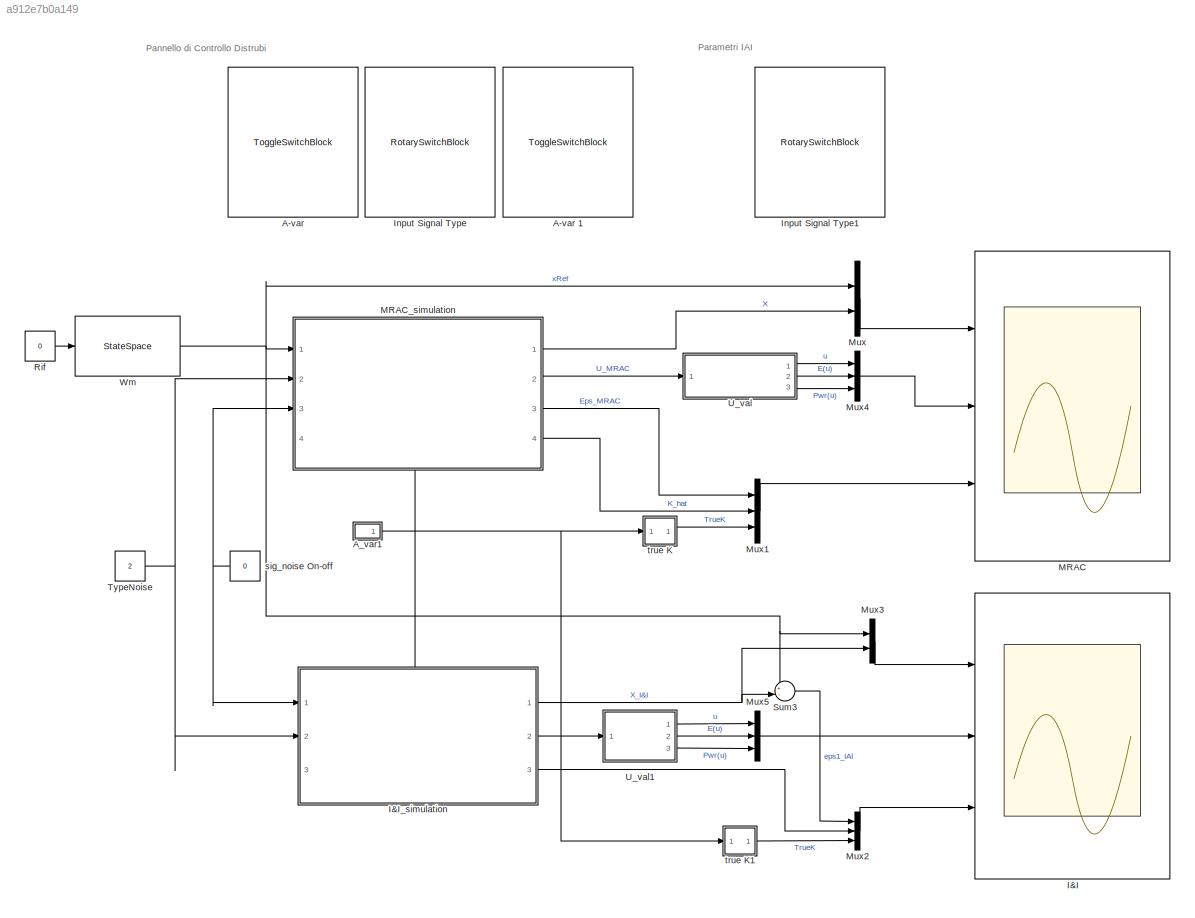
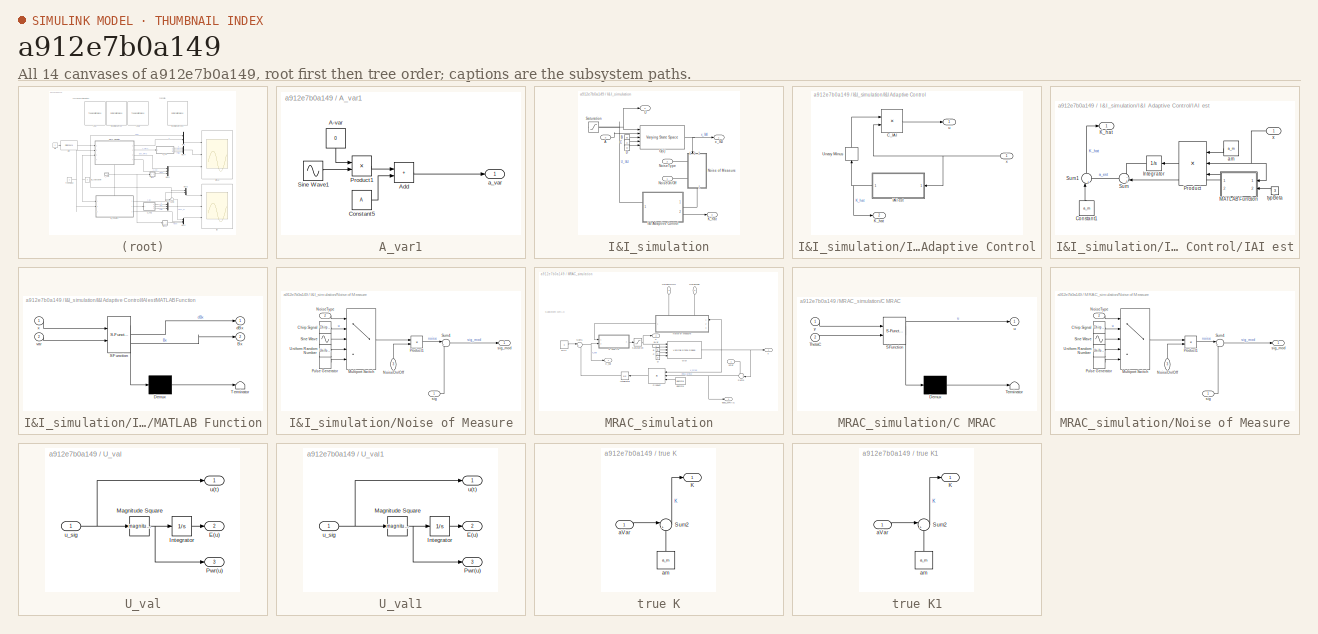
[diagram: thumbnail index - all 14 canvases of the model, root first then tree order]
MODEL slx_a912e7b0a149
KIND model
CONFIG AbsTol = auto
CONFIG EnableMultiTasking = off
CONFIG FixedStep = 0.01
CONFIG InitFcn = variableLoad
CONFIG MaxStep = auto
CONFIG MinStep = auto
CONFIG RelTol = 1e-7
CONFIG SampleTimeConstraint = Unconstrained
CONFIG Solver = VariableStepAuto
CONFIG SolverName = VariableStepAuto
CONFIG StartTime = 0.0
CONFIG StopTime = 10
BLOCK [ToggleSwitchBlock] A-var 
  LabelPosition = Hide
BLOCK [ToggleSwitchBlock] A-var 1
  LabelPosition = Hide
BLOCK [SubSystem] A_var1
  NameLocation = left
  Ports = [0, 1]
  RequestExecContextInheritance = off
BLOCK [Constant] A_var1/A-var
  NameLocation = left
  Value = 0
BLOCK [Sum] A_var1/Add
  IconShape = rectangular
  Ports = [2, 1]
BLOCK [Constant] A_var1/Constant5
  Value = A
BLOCK [Product] A_var1/Product1
  Ports = [2, 1]
BLOCK [Sin] A_var1/Sine Wave1
  Amplitude = a_ampl
  Frequency = a_varFreq
  Ports = [0, 1]
  SampleTime = 0
BLOCK [Outport] A_var1/a_var
BLOCK [Scope] I&I
  Floating = off
  NumInputPorts = 3
  Ports = [3]
  ScopeSpecificationString = Simulink.scopes.TimeScopeBlockCfg('CurrentConfiguration', extmgr.ConfigurationSet(extmgr.Configuration('Core','General UI',true),extmgr.Configuration('Core','Source UI',true),extmgr.Configuration('Sources','WiredSimulink',true,'DataLoggingVariableName','ScopeData1'),extmgr.Configuration('Visuals','Time Domain',true,'SerializedDisplays',{struct('MinYLimReal','-1.875','MaxYLimReal','16.875','YLabelR...<+2842ch>
BLOCK [SubSystem] I&I_simulation
  PortSchema = {"entries":[{"content":{"sides":[{"content":{"connectorIds":["In1","In2"]},"type":"ConnectorPlacement.EquallySpacedRectSide","uuid":"d384756c-e0fa-418b-b326-9d1059b6aafa"},{"content":{"connectorIds":["Out1","Out2","Out3"],"side":"RIGHT"},"type":"ConnectorPlacement.EquallySpacedRectSide","uuid":"b98808e4-51f1-49a7-8e8c-394bc903109b"},{"content":{"connectorIds":["In3"],"side":"TOP"},"type":"Connecto...<+267ch>
  Ports = [3, 3]
  RequestExecContextInheritance = off
BLOCK [Inport] I&I_simulation/A
  Port = 3
BLOCK [Constant] I&I_simulation/B
  NameLocation = left
  Value = B
BLOCK [Constant] I&I_simulation/C
  NameLocation = left
  Value = C
BLOCK [Constant] I&I_simulation/D
  NameLocation = left
  Value = D
BLOCK [Reference] I&I_simulation/G(s)  REF=cstblocks/Linear Parameter Varying/Varying State Space
  Ports = [5, 3]
  SourceBlock = cstblocks/Linear Parameter Varying/Varying State Space
  SourceProductBaseCode = CT
  SourceType = Varying State Space
BLOCK [SubSystem] I&I_simulation/I&I Adaptive Control
  PortSchema = {"entries":[{"content":{"sides":[{"content":{"connectorIds":["Out2","In1"]},"type":"ConnectorPlacement.EquallySpacedRectSide","uuid":"e4fc12a4-4da8-494f-b951-d6a4b2b0fcb6"},{"content":{"connectorIds":["Out1"],"side":"RIGHT"},"type":"ConnectorPlacement.EquallySpacedRectSide","uuid":"49d49c76-986a-4ce3-a132-696710026b43"},{"content":{"connectorIds":[],"side":"TOP"},"type":"ConnectorPlacement.Equally...<+393ch>
  Ports = [1, 2]
  RequestExecContextInheritance = off
BLOCK [Product] I&I_simulation/I&I Adaptive Control/C_IAI
  Ports = [2, 1]
BLOCK [SubSystem] I&I_simulation/I&I Adaptive Control/IAI est
  Ports = [1, 1]
  RequestExecContextInheritance = off
BLOCK [Constant] I&I_simulation/I&I Adaptive Control/IAI est/Constant1
  NameLocation = right
  Value = a_m
BLOCK [Integrator] I&I_simulation/I&I Adaptive Control/IAI est/Integrator
  NameLocation = top
  Ports = [1, 1]
BLOCK [Outport] I&I_simulation/I&I Adaptive Control/IAI est/K_hat
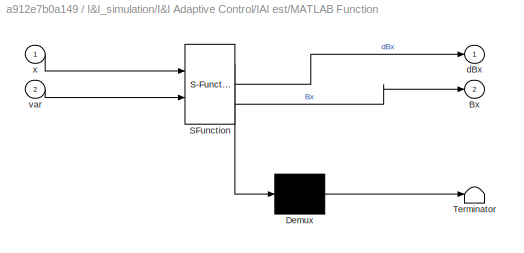
BLOCK [SubSystem] I&I_simulation/I&I Adaptive Control/IAI est/MATLAB Function
  ErrorFcn = Stateflow.Translate.translate
  NameLocation = top
  PermitHierarchicalResolution = ExplicitOnly
  Ports = [2, 2]
  RequestExecContextInheritance = off
  SFBlockType = MATLAB Function
  TreatAsAtomicUnit = on
BLOCK [Demux] I&I_simulation/I&I Adaptive Control/IAI est/MATLAB Function/ Demux 
  Outputs = 1
  Ports = [1, 1]
BLOCK [S-Function] I&I_simulation/I&I Adaptive Control/IAI est/MATLAB Function/ SFunction 
  EnableBusSupport = on
  FunctionName = sf_sfun
  PortCounts = [2 3]
  Ports = [2, 3]
  SFcnIsStateOwnerBlock = off
  SFunctionDeploymentMode = off
  Tag = Stateflow S-Function 1
BLOCK [Terminator] I&I_simulation/I&I Adaptive Control/IAI est/MATLAB Function/ Terminator 
BLOCK [Outport] I&I_simulation/I&I Adaptive Control/IAI est/MATLAB Function/Bx
  Port = 2
BLOCK [Outport] I&I_simulation/I&I Adaptive Control/IAI est/MATLAB Function/dBx
BLOCK [Inport] I&I_simulation/I&I Adaptive Control/IAI est/MATLAB Function/var
  Port = 2
BLOCK [Inport] I&I_simulation/I&I Adaptive Control/IAI est/MATLAB Function/x
BLOCK [Product] I&I_simulation/I&I Adaptive Control/IAI est/Product
  Inputs = 3
  NameLocation = top
  Ports = [3, 1]
BLOCK [Sum] I&I_simulation/I&I Adaptive Control/IAI est/Sum
  Inputs = -|+
  NameLocation = top
  Ports = [2, 1]
BLOCK [Sum] I&I_simulation/I&I Adaptive Control/IAI est/Sum1
  Inputs = |++
  NameLocation = right
  Ports = [2, 1]
BLOCK [Constant] I&I_simulation/I&I Adaptive Control/IAI est/am
  NameLocation = top
  Value = a_m
BLOCK [Constant] I&I_simulation/I&I Adaptive Control/IAI est/typBeta
  NameLocation = top
  Value = 3
BLOCK [Inport] I&I_simulation/I&I Adaptive Control/IAI est/x
  NameLocation = top
BLOCK [Outport] I&I_simulation/I&I Adaptive Control/K_hat
  Port = 2
BLOCK [UnaryMinus] I&I_simulation/I&I Adaptive Control/Unary Minus
  NameLocation = right
BLOCK [Outport] I&I_simulation/I&I Adaptive Control/u
BLOCK [Inport] I&I_simulation/I&I Adaptive Control/x
BLOCK [Outport] I&I_simulation/K_hat
  Port = 3
BLOCK [SubSystem] I&I_simulation/Noise of Measure
  NameLocation = right
  PortSchema = {"entries":[{"content":{"sides":[{"content":{"connectorIds":["In1"]},"type":"ConnectorPlacement.EquallySpacedRectSide","uuid":"4b508b70-0ad5-40d5-a386-2018a01c222c"},{"content":{"connectorIds":["Out1"],"side":"RIGHT"},"type":"ConnectorPlacement.EquallySpacedRectSide","uuid":"c3cac95c-7f5d-4583-ad3e-275e11afc2b6"},{"content":{"connectorIds":["In2","In3"],"side":"TOP"},"type":"ConnectorPlacement.Equ...<+253ch>
  Ports = [3, 1]
  RequestExecContextInheritance = off
BLOCK [Reference] I&I_simulation/Noise of Measure/Chirp Signal  REF=simulink/Sources/Chirp Signal
  Ports = [0, 1]
  SourceBlock = simulink/Sources/Chirp Signal
  SourceProductBaseCode = SL
  SourceType = chirp
BLOCK [MultiPortSwitch] I&I_simulation/Noise of Measure/Multiport Switch
  DataPortIndices = {1,2,3,4}
  DataPortOrder = Specify indices
  InputSameDT = off
  Ports = [5, 1]
  SaturateOnIntegerOverflow = off
BLOCK [Inport] I&I_simulation/Noise of Measure/NoiseOn//Off
  Port = 3
BLOCK [Inport] I&I_simulation/Noise of Measure/NoiseType
  NameLocation = left
  Port = 2
BLOCK [Product] I&I_simulation/Noise of Measure/Product1
  Ports = [2, 1]
BLOCK [DiscretePulseGenerator] I&I_simulation/Noise of Measure/Pulse Generator
  Amplitude = 0.1
  Period = 1
  Ports = [0, 1]
  PulseType = Time based
  PulseWidth = 50
BLOCK [Sin] I&I_simulation/Noise of Measure/Sine Wave
  Amplitude = 0.1
  Frequency = 5
  Ports = [0, 1]
  SampleTime = 0
BLOCK [Sum] I&I_simulation/Noise of Measure/Sum4
  Inputs = |++
  Ports = [2, 1]
BLOCK [UniformRandomNumber] I&I_simulation/Noise of Measure/Uniform Random Number
  Maximum = 0.1
  Minimum = -eMax
  SampleTime = 0.1
BLOCK [Inport] I&I_simulation/Noise of Measure/sig
BLOCK [Outport] I&I_simulation/Noise of Measure/sig_mod
BLOCK [Inport] I&I_simulation/NoiseOn//Off
BLOCK [Inport] I&I_simulation/NoiseType
  Port = 2
BLOCK [Saturate] I&I_simulation/Saturation
  LowerLimit = -x0Wm*sogliaSat
  UpperLimit = x0Wm*sogliaSat
BLOCK [Outport] I&I_simulation/U
  Port = 2
BLOCK [Outport] I&I_simulation/x_I&I
BLOCK [RotarySwitchBlock] Input Signal Type
  LabelPosition = Hide
BLOCK [RotarySwitchBlock] Input Signal Type1
  LabelPosition = Hide
BLOCK [Scope] MRAC
  Floating = off
  NumInputPorts = 3
  Ports = [3]
  ScopeSpecificationString = Simulink.scopes.TimeScopeBlockCfg('CurrentConfiguration', extmgr.ConfigurationSet(extmgr.Configuration('Core','General UI',true),extmgr.Configuration('Core','Source UI',true),extmgr.Configuration('Sources','WiredSimulink',true,'DataLoggingVariableName','ScopeData1'),extmgr.Configuration('Visuals','Time Domain',true,'SerializedDisplays',{struct('MinYLimReal','-1.88721','MaxYLimReal','16.98491','YLa...<+2829ch>
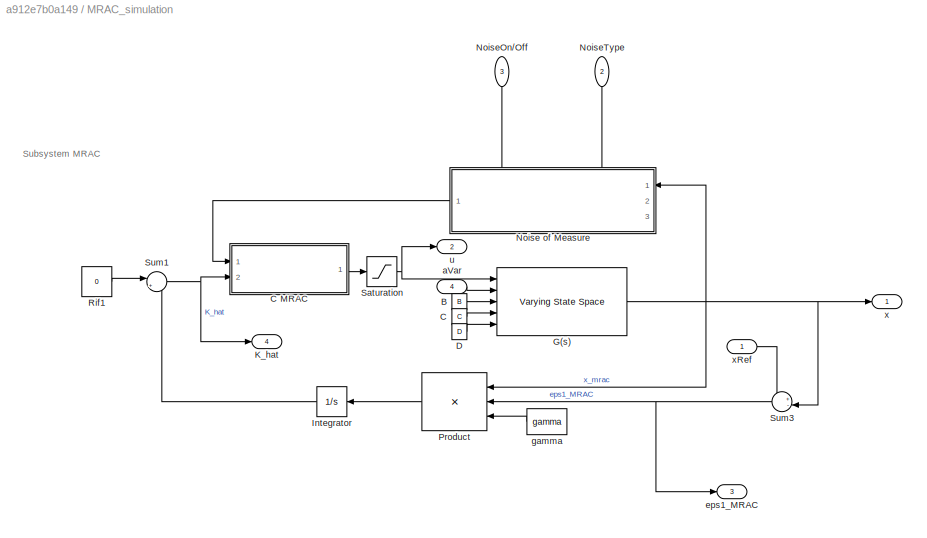
BLOCK [SubSystem] MRAC_simulation
  PortSchema = {"entries":[{"content":{"sides":[{"content":{"connectorIds":["In1","In2","In3"]},"type":"ConnectorPlacement.EquallySpacedRectSide","uuid":"50a8448c-639f-4b89-bd32-4c433e6280bb"},{"content":{"connectorIds":["Out1","Out2","Out3","Out4"],"side":"RIGHT"},"type":"ConnectorPlacement.EquallySpacedRectSide","uuid":"8e99ffe2-f777-454e-a352-f8b1454567c4"},{"content":{"connectorIds":[],"side":"TOP"},"type":"...<+424ch>
  Ports = [4, 4]
  RequestExecContextInheritance = off
BLOCK [Constant] MRAC_simulation/B
  NameLocation = left
  Value = B
BLOCK [Constant] MRAC_simulation/C
  NameLocation = left
  Value = C
BLOCK [SubSystem] MRAC_simulation/C MRAC
  ErrorFcn = Stateflow.Translate.translate
  PermitHierarchicalResolution = ExplicitOnly
  Ports = [2, 1]
  RequestExecContextInheritance = off
  SFBlockType = MATLAB Function
  TreatAsAtomicUnit = on
BLOCK [Demux] MRAC_simulation/C MRAC/ Demux 
  Outputs = 1
  Ports = [1, 1]
BLOCK [S-Function] MRAC_simulation/C MRAC/ SFunction 
  EnableBusSupport = on
  FunctionName = sf_sfun
  PortCounts = [2 2]
  Ports = [2, 2]
  SFcnIsStateOwnerBlock = off
  SFunctionDeploymentMode = off
  Tag = Stateflow S-Function 2
BLOCK [Terminator] MRAC_simulation/C MRAC/ Terminator 
BLOCK [Inport] MRAC_simulation/C MRAC/ThetaC
  Port = 2
BLOCK [Outport] MRAC_simulation/C MRAC/u
BLOCK [Inport] MRAC_simulation/C MRAC/y
BLOCK [Constant] MRAC_simulation/D
  NameLocation = left
  Value = D
BLOCK [Reference] MRAC_simulation/G(s)  REF=cstblocks/Linear Parameter Varying/Varying State Space
  Ports = [5, 3]
  SourceBlock = cstblocks/Linear Parameter Varying/Varying State Space
  SourceProductBaseCode = CT
  SourceType = Varying State Space
BLOCK [Integrator] MRAC_simulation/Integrator
  NameLocation = top
  Ports = [1, 1]
BLOCK [Outport] MRAC_simulation/K_hat
  Port = 4
BLOCK [SubSystem] MRAC_simulation/Noise of Measure
  PortSchema = {"entries":[{"content":{"sides":[{"content":{"connectorIds":["In1"]},"type":"ConnectorPlacement.EquallySpacedRectSide","uuid":"4b508b70-0ad5-40d5-a386-2018a01c222c"},{"content":{"connectorIds":["Out1"],"side":"RIGHT"},"type":"ConnectorPlacement.EquallySpacedRectSide","uuid":"c3cac95c-7f5d-4583-ad3e-275e11afc2b6"},{"content":{"connectorIds":["In2","In3"],"side":"TOP"},"type":"ConnectorPlacement.Equ...<+253ch>
  Ports = [3, 1]
  RequestExecContextInheritance = off
BLOCK [Reference] MRAC_simulation/Noise of Measure/Chirp Signal  REF=simulink/Sources/Chirp Signal
  Ports = [0, 1]
  SourceBlock = simulink/Sources/Chirp Signal
  SourceProductBaseCode = SL
  SourceType = chirp
BLOCK [MultiPortSwitch] MRAC_simulation/Noise of Measure/Multiport Switch
  DataPortIndices = {1,2,3,4}
  DataPortOrder = Specify indices
  InputSameDT = off
  Ports = [5, 1]
  SaturateOnIntegerOverflow = off
BLOCK [Inport] MRAC_simulation/Noise of Measure/NoiseOn//Off
  Port = 3
BLOCK [Inport] MRAC_simulation/Noise of Measure/NoiseType
  NameLocation = left
  Port = 2
BLOCK [Product] MRAC_simulation/Noise of Measure/Product1
  Ports = [2, 1]
BLOCK [DiscretePulseGenerator] MRAC_simulation/Noise of Measure/Pulse Generator
  Amplitude = 0.1
  Period = 1
  Ports = [0, 1]
  PulseType = Time based
  PulseWidth = 50
BLOCK [Sin] MRAC_simulation/Noise of Measure/Sine Wave
  Amplitude = 0.1
  Frequency = 5
  Ports = [0, 1]
  SampleTime = 0
BLOCK [Sum] MRAC_simulation/Noise of Measure/Sum4
  Inputs = |++
  Ports = [2, 1]
BLOCK [UniformRandomNumber] MRAC_simulation/Noise of Measure/Uniform Random Number
  Maximum = 0.1
  Minimum = -eMax
  SampleTime = 0.1
BLOCK [Inport] MRAC_simulation/Noise of Measure/sig
BLOCK [Outport] MRAC_simulation/Noise of Measure/sig_mod
BLOCK [Inport] MRAC_simulation/NoiseOn//Off
  NameLocation = top
  Port = 3
BLOCK [Inport] MRAC_simulation/NoiseType
  NameLocation = top
  Port = 2
BLOCK [Product] MRAC_simulation/Product
  Inputs = 3
  NameLocation = top
  Ports = [3, 1]
BLOCK [Constant] MRAC_simulation/Rif1
  Value = 0
BLOCK [Saturate] MRAC_simulation/Saturation
  LowerLimit = -x0Wm*sogliaSat
  UpperLimit = x0Wm*sogliaSat
BLOCK [Sum] MRAC_simulation/Sum1
  Inputs = |+-
  Ports = [2, 1]
BLOCK [Sum] MRAC_simulation/Sum3
  Inputs = +-|
  NameLocation = top
  Ports = [2, 1]
BLOCK [Inport] MRAC_simulation/aVar
  NameLocation = left
  Port = 4
BLOCK [Outport] MRAC_simulation/eps1_MRAC
  Port = 3
BLOCK [Constant] MRAC_simulation/gamma
  Value = gamma
BLOCK [Outport] MRAC_simulation/u
  Port = 2
BLOCK [Outport] MRAC_simulation/x
BLOCK [Inport] MRAC_simulation/xRef
BLOCK [Mux] Mux
  DisplayOption = bar
  Inputs = 2
  Ports = [2, 1]
BLOCK [Mux] Mux1
  DisplayOption = bar
  Inputs = 3
  Ports = [3, 1]
BLOCK [Mux] Mux2
  DisplayOption = bar
  Inputs = 3
  Ports = [3, 1]
BLOCK [Mux] Mux3
  DisplayOption = bar
  Inputs = 2
  Ports = [2, 1]
BLOCK [Mux] Mux4
  DisplayOption = bar
  Inputs = 3
  Ports = [3, 1]
BLOCK [Mux] Mux5
  DisplayOption = bar
  Inputs = 3
  Ports = [3, 1]
BLOCK [Constant] Rif
  Value = 0
BLOCK [Sum] Sum3
  Inputs = +-|
  Ports = [2, 1]
BLOCK [Constant] TypeNoise
  NameLocation = left
  Value = 2
BLOCK [SubSystem] U_val
  Ports = [1, 3]
  RequestExecContextInheritance = off
BLOCK [Outport] U_val/E(u)
  Port = 2
BLOCK [Integrator] U_val/Integrator
  Ports = [1, 1]
BLOCK [Math] U_val/Magnitude Square
  Operator = magnitude^2
  Ports = [1, 1]
  RndMeth = Zero
  SignedPower = on
BLOCK [Outport] U_val/Pwr(u)
  Port = 3
BLOCK [Outport] U_val/u(t)
BLOCK [Inport] U_val/u_sig
BLOCK [SubSystem] U_val1
  Ports = [1, 3]
  RequestExecContextInheritance = off
BLOCK [Outport] U_val1/E(u)
  Port = 2
BLOCK [Integrator] U_val1/Integrator
  Ports = [1, 1]
BLOCK [Math] U_val1/Magnitude Square
  Operator = magnitude^2
  Ports = [1, 1]
  RndMeth = Zero
  SignedPower = on
BLOCK [Outport] U_val1/Pwr(u)
  Port = 3
BLOCK [Outport] U_val1/u(t)
BLOCK [Inport] U_val1/u_sig
BLOCK [StateSpace] Wm
  A = AWm
  B = BWm
  C = CWm
  D = DWm
  InitialCondition = x0Wm
  Ports = [1, 1]
BLOCK [Constant] sig_noise On-off
  Value = 0
BLOCK [SubSystem] true K
  Ports = [1, 1]
  RequestExecContextInheritance = off
BLOCK [Outport] true K/K
BLOCK [Sum] true K/Sum2
  Inputs = |+-
  Ports = [2, 1]
BLOCK [Inport] true K/aVar
  NameLocation = left
BLOCK [Constant] true K/am
  NameLocation = right
  Value = a_m
BLOCK [SubSystem] true K1
  Ports = [1, 1]
  RequestExecContextInheritance = off
BLOCK [Outport] true K1/K
BLOCK [Sum] true K1/Sum2
  Inputs = |+-
  Ports = [2, 1]
BLOCK [Inport] true K1/aVar
  NameLocation = left
BLOCK [Constant] true K1/am
  NameLocation = right
  Value = a_m
ANNOTATION (root): Pannello di Controllo Distrubi
ANNOTATION (root): Parametri IAI
ANNOTATION MRAC_simulation: Subsystem MRAC
LINE A_var1/A-var:1 -> A_var1/Product1:1
LINE A_var1/Add:1 -> A_var1/a_var:1
LINE A_var1/Constant5:1 -> A_var1/Add:2
LINE A_var1/Product1:1 -> A_var1/Add:1
LINE A_var1/Sine Wave1:1 -> A_var1/Product1:2
NET A_var1:1 -> I&I_simulation:3, MRAC_simulation:4, true K1:1, true K:1
LINE I&I_simulation/A:1 -> I&I_simulation/G(s):2
LINE I&I_simulation/B:1 -> I&I_simulation/G(s):3
LINE I&I_simulation/C:1 -> I&I_simulation/G(s):4
LINE I&I_simulation/D:1 -> I&I_simulation/G(s):5
NET I&I_simulation/G(s):2 -> I&I_simulation/Noise of Measure:1, I&I_simulation/x_I&I:1
LINE I&I_simulation/I&I Adaptive Control/C_IAI:1 -> I&I_simulation/I&I Adaptive Control/u:1
LINE I&I_simulation/I&I Adaptive Control/IAI est/Constant1:1 -> I&I_simulation/I&I Adaptive Control/IAI est/Sum1:1
LINE I&I_simulation/I&I Adaptive Control/IAI est/Integrator:1 -> I&I_simulation/I&I Adaptive Control/IAI est/Sum:1
LINE I&I_simulation/I&I Adaptive Control/IAI est/MATLAB Function:1 -> I&I_simulation/I&I Adaptive Control/IAI est/Product:3
LINE I&I_simulation/I&I Adaptive Control/IAI est/MATLAB Function:2 -> I&I_simulation/I&I Adaptive Control/IAI est/Sum:2
LINE I&I_simulation/I&I Adaptive Control/IAI est/Product:1 -> I&I_simulation/I&I Adaptive Control/IAI est/Integrator:1
LINE I&I_simulation/I&I Adaptive Control/IAI est/Sum1:1 -> I&I_simulation/I&I Adaptive Control/IAI est/K_hat:1
LINE I&I_simulation/I&I Adaptive Control/IAI est/Sum:1 -> I&I_simulation/I&I Adaptive Control/IAI est/Sum1:2
LINE I&I_simulation/I&I Adaptive Control/IAI est/am:1 -> I&I_simulation/I&I Adaptive Control/IAI est/Product:1
LINE I&I_simulation/I&I Adaptive Control/IAI est/typBeta:1 -> I&I_simulation/I&I Adaptive Control/IAI est/MATLAB Function:2
NET I&I_simulation/I&I Adaptive Control/IAI est/x:1 -> I&I_simulation/I&I Adaptive Control/IAI est/MATLAB Function:1, I&I_simulation/I&I Adaptive Control/IAI est/Product:2
NET I&I_simulation/I&I Adaptive Control/IAI est:1 -> I&I_simulation/I&I Adaptive Control/K_hat:1, I&I_simulation/I&I Adaptive Control/Unary Minus:1
LINE I&I_simulation/I&I Adaptive Control/Unary Minus:1 -> I&I_simulation/I&I Adaptive Control/C_IAI:1
NET I&I_simulation/I&I Adaptive Control/x:1 -> I&I_simulation/I&I Adaptive Control/C_IAI:2, I&I_simulation/I&I Adaptive Control/IAI est:1
LINE I&I_simulation/I&I Adaptive Control:1 -> I&I_simulation/Saturation:1
LINE I&I_simulation/I&I Adaptive Control:2 -> I&I_simulation/K_hat:1
LINE I&I_simulation/Noise of Measure/Chirp Signal:1 -> I&I_simulation/Noise of Measure/Multiport Switch:2
LINE I&I_simulation/Noise of Measure/Multiport Switch:1 -> I&I_simulation/Noise of Measure/Product1:1
LINE I&I_simulation/Noise of Measure/NoiseOn//Off:1 -> I&I_simulation/Noise of Measure/Product1:2
LINE I&I_simulation/Noise of Measure/NoiseType:1 -> I&I_simulation/Noise of Measure/Multiport Switch:1
LINE I&I_simulation/Noise of Measure/Product1:1 -> I&I_simulation/Noise of Measure/Sum4:1
LINE I&I_simulation/Noise of Measure/Pulse Generator:1 -> I&I_simulation/Noise of Measure/Multiport Switch:5
LINE I&I_simulation/Noise of Measure/Sine Wave:1 -> I&I_simulation/Noise of Measure/Multiport Switch:3
LINE I&I_simulation/Noise of Measure/Sum4:1 -> I&I_simulation/Noise of Measure/sig_mod:1
LINE I&I_simulation/Noise of Measure/Uniform Random Number:1 -> I&I_simulation/Noise of Measure/Multiport Switch:4
LINE I&I_simulation/Noise of Measure/sig:1 -> I&I_simulation/Noise of Measure/Sum4:2
LINE I&I_simulation/Noise of Measure:1 -> I&I_simulation/I&I Adaptive Control:1
LINE I&I_simulation/NoiseOn//Off:1 -> I&I_simulation/Noise of Measure:3
LINE I&I_simulation/NoiseType:1 -> I&I_simulation/Noise of Measure:2
NET I&I_simulation/Saturation:1 -> I&I_simulation/G(s):1, I&I_simulation/U:1
NET I&I_simulation:1 -> Mux3:2, Sum3:2
LINE I&I_simulation:2 -> U_val1:1
LINE I&I_simulation:3 -> Mux2:2
LINE MRAC_simulation/B:1 -> MRAC_simulation/G(s):3
LINE MRAC_simulation/C MRAC:1 -> MRAC_simulation/Saturation:1
LINE MRAC_simulation/C:1 -> MRAC_simulation/G(s):4
LINE MRAC_simulation/D:1 -> MRAC_simulation/G(s):5
NET MRAC_simulation/G(s):2 -> MRAC_simulation/Noise of Measure:1, MRAC_simulation/Product:1, MRAC_simulation/Sum3:2, MRAC_simulation/x:1
LINE MRAC_simulation/Integrator:1 -> MRAC_simulation/Sum1:2
LINE MRAC_simulation/Noise of Measure/Chirp Signal:1 -> MRAC_simulation/Noise of Measure/Multiport Switch:2
LINE MRAC_simulation/Noise of Measure/Multiport Switch:1 -> MRAC_simulation/Noise of Measure/Product1:1
LINE MRAC_simulation/Noise of Measure/NoiseOn//Off:1 -> MRAC_simulation/Noise of Measure/Product1:2
LINE MRAC_simulation/Noise of Measure/NoiseType:1 -> MRAC_simulation/Noise of Measure/Multiport Switch:1
LINE MRAC_simulation/Noise of Measure/Product1:1 -> MRAC_simulation/Noise of Measure/Sum4:1
LINE MRAC_simulation/Noise of Measure/Pulse Generator:1 -> MRAC_simulation/Noise of Measure/Multiport Switch:5
LINE MRAC_simulation/Noise of Measure/Sine Wave:1 -> MRAC_simulation/Noise of Measure/Multiport Switch:3
LINE MRAC_simulation/Noise of Measure/Sum4:1 -> MRAC_simulation/Noise of Measure/sig_mod:1
LINE MRAC_simulation/Noise of Measure/Uniform Random Number:1 -> MRAC_simulation/Noise of Measure/Multiport Switch:4
LINE MRAC_simulation/Noise of Measure/sig:1 -> MRAC_simulation/Noise of Measure/Sum4:2
LINE MRAC_simulation/Noise of Measure:1 -> MRAC_simulation/C MRAC:1
LINE MRAC_simulation/NoiseOn//Off:1 -> MRAC_simulation/Noise of Measure:3
LINE MRAC_simulation/NoiseType:1 -> MRAC_simulation/Noise of Measure:2
LINE MRAC_simulation/Product:1 -> MRAC_simulation/Integrator:1
LINE MRAC_simulation/Rif1:1 -> MRAC_simulation/Sum1:1
NET MRAC_simulation/Saturation:1 -> MRAC_simulation/G(s):1, MRAC_simulation/u:1
NET MRAC_simulation/Sum1:1 -> MRAC_simulation/C MRAC:2, MRAC_simulation/K_hat:1
NET MRAC_simulation/Sum3:1 -> MRAC_simulation/Product:2, MRAC_simulation/eps1_MRAC:1
LINE MRAC_simulation/aVar:1 -> MRAC_simulation/G(s):2
LINE MRAC_simulation/gamma:1 -> MRAC_simulation/Product:3
LINE MRAC_simulation/xRef:1 -> MRAC_simulation/Sum3:1
LINE MRAC_simulation:1 -> Mux:2
LINE MRAC_simulation:2 -> U_val:1
LINE MRAC_simulation:3 -> Mux1:1
LINE MRAC_simulation:4 -> Mux1:2
LINE Mux1:1 -> MRAC:3
LINE Mux2:1 -> I&I:3
LINE Mux3:1 -> I&I:1
LINE Mux4:1 -> MRAC:2
LINE Mux5:1 -> I&I:2
LINE Mux:1 -> MRAC:1
LINE Rif:1 -> Wm:1
LINE Sum3:1 -> Mux2:1
NET TypeNoise:1 -> I&I_simulation:2, MRAC_simulation:2
LINE U_val/Integrator:1 -> U_val/E(u):1
NET U_val/Magnitude Square:1 -> U_val/Integrator:1, U_val/Pwr(u):1
NET U_val/u_sig:1 -> U_val/Magnitude Square:1, U_val/u(t):1
LINE U_val1/Integrator:1 -> U_val1/E(u):1
NET U_val1/Magnitude Square:1 -> U_val1/Integrator:1, U_val1/Pwr(u):1
NET U_val1/u_sig:1 -> U_val1/Magnitude Square:1, U_val1/u(t):1
LINE U_val1:1 -> Mux5:1
LINE U_val1:2 -> Mux5:2
LINE U_val1:3 -> Mux5:3
LINE U_val:1 -> Mux4:1
LINE U_val:2 -> Mux4:2
LINE U_val:3 -> Mux4:3
NET Wm:1 -> MRAC_simulation:1, Mux3:1, Mux:1, Sum3:1
NET sig_noise On-off:1 -> I&I_simulation:1, MRAC_simulation:3
LINE true K/Sum2:1 -> true K/K:1
LINE true K/aVar:1 -> true K/Sum2:1
LINE true K/am:1 -> true K/Sum2:2
LINE true K1/Sum2:1 -> true K1/K:1
LINE true K1/aVar:1 -> true K1/Sum2:1
LINE true K1/am:1 -> true K1/Sum2:2
LINE true K1:1 -> Mux2:3
LINE true K:1 -> Mux1:3
note: NET lines group one-source signal fan-out (src -> all destinations, sorted); 1:1 wires keep LINE
CHART MRAC_simulation/C MRAC states=1 transitions=1
  STATE_LABEL 'eML_blk_kernel()'
  STATE_LABEL 'SCRIPT:\nfunction u = C(y,ThetaC)\n\nu=-y*ThetaC;\n\nend\n'
CHART I&I_simulation/I&I Adaptive Control/IAI est/MATLAB Function states=1 transitions=1
  STATE_LABEL 'eML_blk_kernel()'
  STATE_LABEL 'SCRIPT:\nfunction [dBx,Bx] = Beta(x,var)\n% Var 1...5 indica una delle 5 Beta pensate\nBx = 0; dBx = 0;\nif(x == 0)\n    Bx = 0; dBx = 0;\n    return;\nend\n    switch(var)\n        case 1 % Parabola\n            Bx = x^2/2; dBx = x;\n        case 2 % Logaritimica\n            Bx = 1/2*log(1+x^2); dBx = x/(1+x^2);\n        case 3 % Radicale\n            Bx = 2*(abs(x))^0.5; dBx = ((sign(x)*x)^0.5)/x;\n        ca...<+114ch>'
CHART  states=0 transitions=0
CHART  states=0 transitions=0
